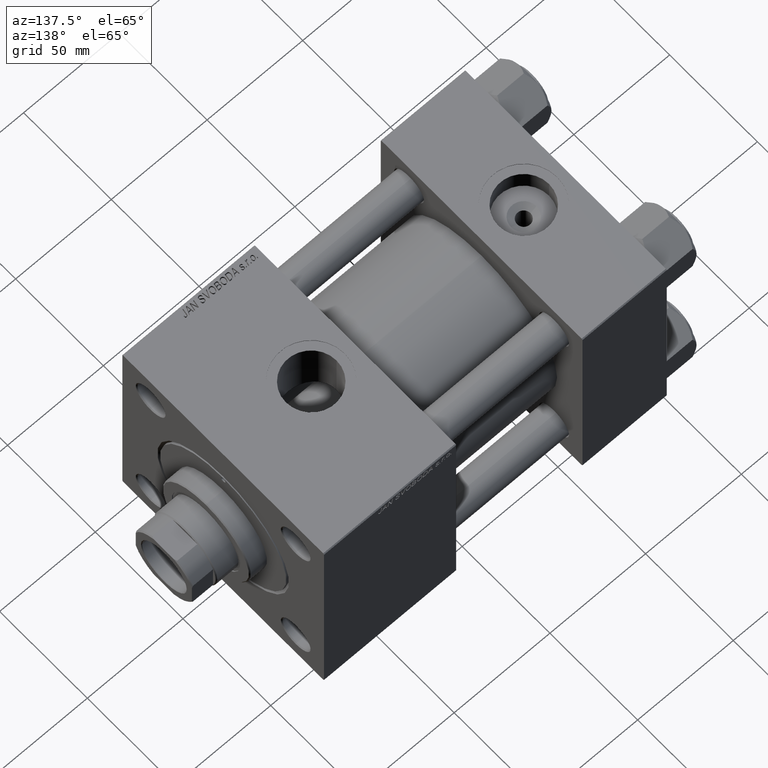
[diagram: clean part render]
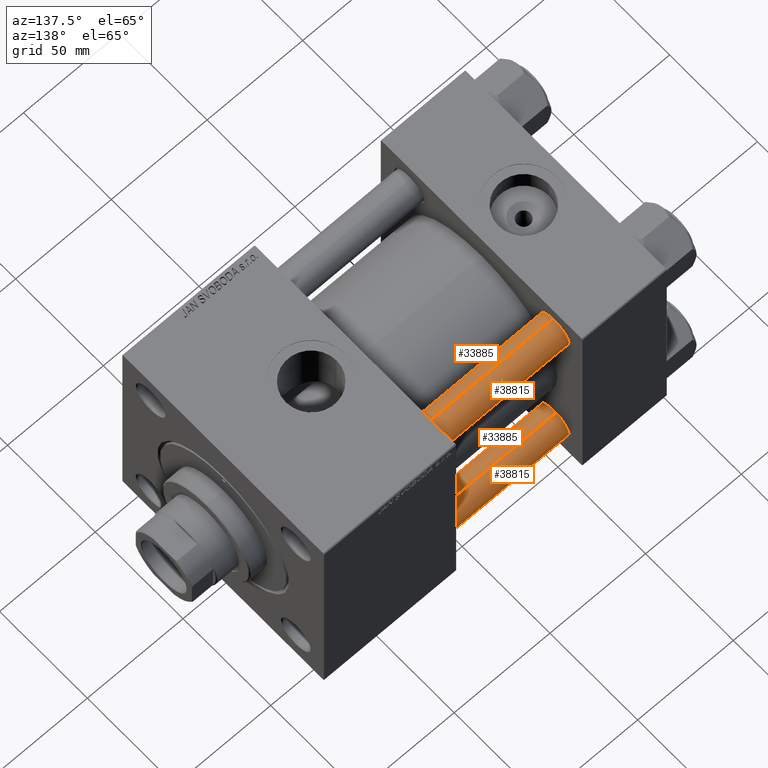
[diagram: same view with one multi-face feature highlighted, each face labeled with its STEP entity id]
A machine part, auxiliary view. The highlighted faces form ONE feature: a constant-radius fillet chain: 4 tangent blend faces with common blend radius 8 mm. The faces share edges in the B-rep.
Their STEP definitions:
[1] entity #38815 (Cylinder):
#83 = CARTESIAN_POINT ( 'NONE',  ( -8.000000000000000000, 0.000000000000000000, 142.4999999999999716 ) ) ;
#607 = DIRECTION ( 'NONE',  ( -0.000000000000000000, -0.000000000000000000, -1.000000000000000000 ) ) ;
#799 = VECTOR ( 'NONE', #31149, 1000.000000000000000 ) ;
#1654 = VERTEX_POINT ( 'NONE', #33851 ) ;
#2371 = ORIENTED_EDGE ( 'NONE', *, *, #27789, .T. ) ;
#2907 = CIRCLE ( 'NONE', #43905, 8.000000000000000000 ) ;
#3565 = CARTESIAN_POINT ( 'NONE',  ( 0.000000000000000000, 0.000000000000000000, 142.4999999999999716 ) ) ;
#3884 = CARTESIAN_POINT ( 'NONE',  ( -8.000000000000000000, 0.000000000000000000, 143.0000000000000000 ) ) ;
#5230 = FACE_OUTER_BOUND ( 'NONE', #33210, .T. ) ;
#8679 = VECTOR ( 'NONE', #28056, 1000.000000000000000 ) ;
#10657 = ORIENTED_EDGE ( 'NONE', *, *, #31506, .F. ) ;
#14594 = AXIS2_PLACEMENT_3D ( 'NONE', #44009, #607, #43529 ) ;
#16511 = ORIENTED_EDGE ( 'NONE', *, *, #17158, .T. ) ;
#17005 = CARTESIAN_POINT ( 'NONE',  ( 8.000000000000000000, 9.797174393178825657E-16, 143.0000000000000000 ) ) ;
#17158 = EDGE_CURVE ( 'NONE', #1654, #26467, #2907, .T. ) ;
#17845 = CARTESIAN_POINT ( 'NONE',  ( 0.000000000000000000, 0.000000000000000000, 0.4999999999999726885 ) ) ;
#18068 = EDGE_CURVE ( 'NONE', #42060, #1654, #27301, .T. ) ;
#19780 = DIRECTION ( 'NONE',  ( 0.000000000000000000, 0.000000000000000000, -1.000000000000000000 ) ) ;
#22027 = CIRCLE ( 'NONE', #42531, 8.000000000000000000 ) ;
#26467 = VERTEX_POINT ( 'NONE', #36353 ) ;
#27301 = LINE ( 'NONE', #17005, #8679 ) ;
#27789 = EDGE_CURVE ( 'NONE', #28188, #42060, #22027, .T. ) ;
#27878 = CYLINDRICAL_SURFACE ( 'NONE', #14594, 8.000000000000000000 ) ;
#28056 = DIRECTION ( 'NONE',  ( -0.000000000000000000, -0.000000000000000000, -1.000000000000000000 ) ) ;
#28188 = VERTEX_POINT ( 'NONE', #83 ) ;
#30138 = CARTESIAN_POINT ( 'NONE',  ( 8.000000000000000000, 9.797174393178825657E-16, 142.4999999999999716 ) ) ;
#31149 = DIRECTION ( 'NONE',  ( -0.000000000000000000, -0.000000000000000000, -1.000000000000000000 ) ) ;
#31506 = EDGE_CURVE ( 'NONE', #28188, #26467, #34740, .T. ) ;
#33210 = EDGE_LOOP ( 'NONE', ( #2371, #38118, #16511, #10657 ) ) ;
#33768 = DIRECTION ( 'NONE',  ( 1.000000000000000000, 0.000000000000000000, 0.000000000000000000 ) ) ;
#33851 = CARTESIAN_POINT ( 'NONE',  ( 8.000000000000000000, 9.797174393178825657E-16, 0.4999999999999726885 ) ) ;
#34740 = LINE ( 'NONE', #3884, #799 ) ;
#36353 = CARTESIAN_POINT ( 'NONE',  ( -8.000000000000000000, 0.000000000000000000, 0.4999999999999726885 ) ) ;
#37608 = DIRECTION ( 'NONE',  ( -0.000000000000000000, -0.000000000000000000, 1.000000000000000000 ) ) ;
#38118 = ORIENTED_EDGE ( 'NONE', *, *, #18068, .T. ) ;
#38815 = ADVANCED_FACE ( 'NONE', ( #5230 ), #27878, .T. ) ;
#42060 = VERTEX_POINT ( 'NONE', #30138 ) ;
#42531 = AXIS2_PLACEMENT_3D ( 'NONE', #3565, #19780, #50565 ) ;
#43529 = DIRECTION ( 'NONE',  ( -1.000000000000000000, 0.000000000000000000, 0.000000000000000000 ) ) ;
#43905 = AXIS2_PLACEMENT_3D ( 'NONE', #17845, #37608, #33768 ) ;
#44009 = CARTESIAN_POINT ( 'NONE',  ( 0.000000000000000000, 0.000000000000000000, 143.0000000000000000 ) ) ;
#50565 = DIRECTION ( 'NONE',  ( 1.000000000000000000, 0.000000000000000000, 0.000000000000000000 ) ) ;
[2] entity #33885 (Cylinder):
#83 = CARTESIAN_POINT ( 'NONE',  ( -8.000000000000000000, 0.000000000000000000, 142.4999999999999716 ) ) ;
#590 = CIRCLE ( 'NONE', #3050, 8.000000000000000000 ) ;
#799 = VECTOR ( 'NONE', #31149, 1000.000000000000000 ) ;
#1654 = VERTEX_POINT ( 'NONE', #33851 ) ;
#3050 = AXIS2_PLACEMENT_3D ( 'NONE', #29499, #21562, #9989 ) ;
#3884 = CARTESIAN_POINT ( 'NONE',  ( -8.000000000000000000, 0.000000000000000000, 143.0000000000000000 ) ) ;
#4504 = EDGE_CURVE ( 'NONE', #42060, #28188, #40361, .T. ) ;
#7851 = AXIS2_PLACEMENT_3D ( 'NONE', #13476, #36590, #13230 ) ;
#8679 = VECTOR ( 'NONE', #28056, 1000.000000000000000 ) ;
#9989 = DIRECTION ( 'NONE',  ( 1.000000000000000000, 0.000000000000000000, 0.000000000000000000 ) ) ;
#13177 = ORIENTED_EDGE ( 'NONE', *, *, #4504, .T. ) ;
#13230 = DIRECTION ( 'NONE',  ( -1.000000000000000000, 0.000000000000000000, 0.000000000000000000 ) ) ;
#13476 = CARTESIAN_POINT ( 'NONE',  ( 0.000000000000000000, 0.000000000000000000, 143.0000000000000000 ) ) ;
#13516 = ORIENTED_EDGE ( 'NONE', *, *, #20727, .T. ) ;
#14576 = ORIENTED_EDGE ( 'NONE', *, *, #31506, .T. ) ;
#17005 = CARTESIAN_POINT ( 'NONE',  ( 8.000000000000000000, 9.797174393178825657E-16, 143.0000000000000000 ) ) ;
#17090 = ORIENTED_EDGE ( 'NONE', *, *, #18068, .F. ) ;
#18068 = EDGE_CURVE ( 'NONE', #42060, #1654, #27301, .T. ) ;
#18888 = DIRECTION ( 'NONE',  ( 1.000000000000000000, 0.000000000000000000, 0.000000000000000000 ) ) ;
#20727 = EDGE_CURVE ( 'NONE', #26467, #1654, #590, .T. ) ;
#21562 = DIRECTION ( 'NONE',  ( -0.000000000000000000, -0.000000000000000000, 1.000000000000000000 ) ) ;
#25278 = FACE_OUTER_BOUND ( 'NONE', #34337, .T. ) ;
#26467 = VERTEX_POINT ( 'NONE', #36353 ) ;
#27301 = LINE ( 'NONE', #17005, #8679 ) ;
#28056 = DIRECTION ( 'NONE',  ( -0.000000000000000000, -0.000000000000000000, -1.000000000000000000 ) ) ;
#28188 = VERTEX_POINT ( 'NONE', #83 ) ;
#29499 = CARTESIAN_POINT ( 'NONE',  ( 0.000000000000000000, 0.000000000000000000, 0.4999999999999726885 ) ) ;
#30138 = CARTESIAN_POINT ( 'NONE',  ( 8.000000000000000000, 9.797174393178825657E-16, 142.4999999999999716 ) ) ;
#31149 = DIRECTION ( 'NONE',  ( -0.000000000000000000, -0.000000000000000000, -1.000000000000000000 ) ) ;
#31506 = EDGE_CURVE ( 'NONE', #28188, #26467, #34740, .T. ) ;
#33851 = CARTESIAN_POINT ( 'NONE',  ( 8.000000000000000000, 9.797174393178825657E-16, 0.4999999999999726885 ) ) ;
#33885 = ADVANCED_FACE ( 'NONE', ( #25278 ), #44787, .T. ) ;
#34337 = EDGE_LOOP ( 'NONE', ( #17090, #13177, #14576, #13516 ) ) ;
#34740 = LINE ( 'NONE', #3884, #799 ) ;
#36353 = CARTESIAN_POINT ( 'NONE',  ( -8.000000000000000000, 0.000000000000000000, 0.4999999999999726885 ) ) ;
#36590 = DIRECTION ( 'NONE',  ( -0.000000000000000000, -0.000000000000000000, -1.000000000000000000 ) ) ;
#38383 = CARTESIAN_POINT ( 'NONE',  ( 0.000000000000000000, 0.000000000000000000, 142.4999999999999716 ) ) ;
#40361 = CIRCLE ( 'NONE', #42803, 8.000000000000000000 ) ;
#42060 = VERTEX_POINT ( 'NONE', #30138 ) ;
#42803 = AXIS2_PLACEMENT_3D ( 'NONE', #38383, #46336, #18888 ) ;
#44787 = CYLINDRICAL_SURFACE ( 'NONE', #7851, 8.000000000000000000 ) ;
#46336 = DIRECTION ( 'NONE',  ( 0.000000000000000000, 0.000000000000000000, -1.000000000000000000 ) ) ;
[3] entity #38815 (Cylinder):
#83 = CARTESIAN_POINT ( 'NONE',  ( -8.000000000000000000, 0.000000000000000000, 142.4999999999999716 ) ) ;
#607 = DIRECTION ( 'NONE',  ( -0.000000000000000000, -0.000000000000000000, -1.000000000000000000 ) ) ;
#799 = VECTOR ( 'NONE', #31149, 1000.000000000000000 ) ;
#1654 = VERTEX_POINT ( 'NONE', #33851 ) ;
#2371 = ORIENTED_EDGE ( 'NONE', *, *, #27789, .T. ) ;
#2907 = CIRCLE ( 'NONE', #43905, 8.000000000000000000 ) ;
#3565 = CARTESIAN_POINT ( 'NONE',  ( 0.000000000000000000, 0.000000000000000000, 142.4999999999999716 ) ) ;
#3884 = CARTESIAN_POINT ( 'NONE',  ( -8.000000000000000000, 0.000000000000000000, 143.0000000000000000 ) ) ;
#5230 = FACE_OUTER_BOUND ( 'NONE', #33210, .T. ) ;
#8679 = VECTOR ( 'NONE', #28056, 1000.000000000000000 ) ;
#10657 = ORIENTED_EDGE ( 'NONE', *, *, #31506, .F. ) ;
#14594 = AXIS2_PLACEMENT_3D ( 'NONE', #44009, #607, #43529 ) ;
#16511 = ORIENTED_EDGE ( 'NONE', *, *, #17158, .T. ) ;
#17005 = CARTESIAN_POINT ( 'NONE',  ( 8.000000000000000000, 9.797174393178825657E-16, 143.0000000000000000 ) ) ;
#17158 = EDGE_CURVE ( 'NONE', #1654, #26467, #2907, .T. ) ;
#17845 = CARTESIAN_POINT ( 'NONE',  ( 0.000000000000000000, 0.000000000000000000, 0.4999999999999726885 ) ) ;
#18068 = EDGE_CURVE ( 'NONE', #42060, #1654, #27301, .T. ) ;
#19780 = DIRECTION ( 'NONE',  ( 0.000000000000000000, 0.000000000000000000, -1.000000000000000000 ) ) ;
#22027 = CIRCLE ( 'NONE', #42531, 8.000000000000000000 ) ;
#26467 = VERTEX_POINT ( 'NONE', #36353 ) ;
#27301 = LINE ( 'NONE', #17005, #8679 ) ;
#27789 = EDGE_CURVE ( 'NONE', #28188, #42060, #22027, .T. ) ;
#27878 = CYLINDRICAL_SURFACE ( 'NONE', #14594, 8.000000000000000000 ) ;
#28056 = DIRECTION ( 'NONE',  ( -0.000000000000000000, -0.000000000000000000, -1.000000000000000000 ) ) ;
#28188 = VERTEX_POINT ( 'NONE', #83 ) ;
#30138 = CARTESIAN_POINT ( 'NONE',  ( 8.000000000000000000, 9.797174393178825657E-16, 142.4999999999999716 ) ) ;
#31149 = DIRECTION ( 'NONE',  ( -0.000000000000000000, -0.000000000000000000, -1.000000000000000000 ) ) ;
#31506 = EDGE_CURVE ( 'NONE', #28188, #26467, #34740, .T. ) ;
#33210 = EDGE_LOOP ( 'NONE', ( #2371, #38118, #16511, #10657 ) ) ;
#33768 = DIRECTION ( 'NONE',  ( 1.000000000000000000, 0.000000000000000000, 0.000000000000000000 ) ) ;
#33851 = CARTESIAN_POINT ( 'NONE',  ( 8.000000000000000000, 9.797174393178825657E-16, 0.4999999999999726885 ) ) ;
#34740 = LINE ( 'NONE', #3884, #799 ) ;
#36353 = CARTESIAN_POINT ( 'NONE',  ( -8.000000000000000000, 0.000000000000000000, 0.4999999999999726885 ) ) ;
#37608 = DIRECTION ( 'NONE',  ( -0.000000000000000000, -0.000000000000000000, 1.000000000000000000 ) ) ;
#38118 = ORIENTED_EDGE ( 'NONE', *, *, #18068, .T. ) ;
#38815 = ADVANCED_FACE ( 'NONE', ( #5230 ), #27878, .T. ) ;
#42060 = VERTEX_POINT ( 'NONE', #30138 ) ;
#42531 = AXIS2_PLACEMENT_3D ( 'NONE', #3565, #19780, #50565 ) ;
#43529 = DIRECTION ( 'NONE',  ( -1.000000000000000000, 0.000000000000000000, 0.000000000000000000 ) ) ;
#43905 = AXIS2_PLACEMENT_3D ( 'NONE', #17845, #37608, #33768 ) ;
#44009 = CARTESIAN_POINT ( 'NONE',  ( 0.000000000000000000, 0.000000000000000000, 143.0000000000000000 ) ) ;
#50565 = DIRECTION ( 'NONE',  ( 1.000000000000000000, 0.000000000000000000, 0.000000000000000000 ) ) ;
[4] entity #33885 (Cylinder):
#83 = CARTESIAN_POINT ( 'NONE',  ( -8.000000000000000000, 0.000000000000000000, 142.4999999999999716 ) ) ;
#590 = CIRCLE ( 'NONE', #3050, 8.000000000000000000 ) ;
#799 = VECTOR ( 'NONE', #31149, 1000.000000000000000 ) ;
#1654 = VERTEX_POINT ( 'NONE', #33851 ) ;
#3050 = AXIS2_PLACEMENT_3D ( 'NONE', #29499, #21562, #9989 ) ;
#3884 = CARTESIAN_POINT ( 'NONE',  ( -8.000000000000000000, 0.000000000000000000, 143.0000000000000000 ) ) ;
#4504 = EDGE_CURVE ( 'NONE', #42060, #28188, #40361, .T. ) ;
#7851 = AXIS2_PLACEMENT_3D ( 'NONE', #13476, #36590, #13230 ) ;
#8679 = VECTOR ( 'NONE', #28056, 1000.000000000000000 ) ;
#9989 = DIRECTION ( 'NONE',  ( 1.000000000000000000, 0.000000000000000000, 0.000000000000000000 ) ) ;
#13177 = ORIENTED_EDGE ( 'NONE', *, *, #4504, .T. ) ;
#13230 = DIRECTION ( 'NONE',  ( -1.000000000000000000, 0.000000000000000000, 0.000000000000000000 ) ) ;
#13476 = CARTESIAN_POINT ( 'NONE',  ( 0.000000000000000000, 0.000000000000000000, 143.0000000000000000 ) ) ;
#13516 = ORIENTED_EDGE ( 'NONE', *, *, #20727, .T. ) ;
#14576 = ORIENTED_EDGE ( 'NONE', *, *, #31506, .T. ) ;
#17005 = CARTESIAN_POINT ( 'NONE',  ( 8.000000000000000000, 9.797174393178825657E-16, 143.0000000000000000 ) ) ;
#17090 = ORIENTED_EDGE ( 'NONE', *, *, #18068, .F. ) ;
#18068 = EDGE_CURVE ( 'NONE', #42060, #1654, #27301, .T. ) ;
#18888 = DIRECTION ( 'NONE',  ( 1.000000000000000000, 0.000000000000000000, 0.000000000000000000 ) ) ;
#20727 = EDGE_CURVE ( 'NONE', #26467, #1654, #590, .T. ) ;
#21562 = DIRECTION ( 'NONE',  ( -0.000000000000000000, -0.000000000000000000, 1.000000000000000000 ) ) ;
#25278 = FACE_OUTER_BOUND ( 'NONE', #34337, .T. ) ;
#26467 = VERTEX_POINT ( 'NONE', #36353 ) ;
#27301 = LINE ( 'NONE', #17005, #8679 ) ;
#28056 = DIRECTION ( 'NONE',  ( -0.000000000000000000, -0.000000000000000000, -1.000000000000000000 ) ) ;
#28188 = VERTEX_POINT ( 'NONE', #83 ) ;
#29499 = CARTESIAN_POINT ( 'NONE',  ( 0.000000000000000000, 0.000000000000000000, 0.4999999999999726885 ) ) ;
#30138 = CARTESIAN_POINT ( 'NONE',  ( 8.000000000000000000, 9.797174393178825657E-16, 142.4999999999999716 ) ) ;
#31149 = DIRECTION ( 'NONE',  ( -0.000000000000000000, -0.000000000000000000, -1.000000000000000000 ) ) ;
#31506 = EDGE_CURVE ( 'NONE', #28188, #26467, #34740, .T. ) ;
#33851 = CARTESIAN_POINT ( 'NONE',  ( 8.000000000000000000, 9.797174393178825657E-16, 0.4999999999999726885 ) ) ;
#33885 = ADVANCED_FACE ( 'NONE', ( #25278 ), #44787, .T. ) ;
#34337 = EDGE_LOOP ( 'NONE', ( #17090, #13177, #14576, #13516 ) ) ;
#34740 = LINE ( 'NONE', #3884, #799 ) ;
#36353 = CARTESIAN_POINT ( 'NONE',  ( -8.000000000000000000, 0.000000000000000000, 0.4999999999999726885 ) ) ;
#36590 = DIRECTION ( 'NONE',  ( -0.000000000000000000, -0.000000000000000000, -1.000000000000000000 ) ) ;
#38383 = CARTESIAN_POINT ( 'NONE',  ( 0.000000000000000000, 0.000000000000000000, 142.4999999999999716 ) ) ;
#40361 = CIRCLE ( 'NONE', #42803, 8.000000000000000000 ) ;
#42060 = VERTEX_POINT ( 'NONE', #30138 ) ;
#42803 = AXIS2_PLACEMENT_3D ( 'NONE', #38383, #46336, #18888 ) ;
#44787 = CYLINDRICAL_SURFACE ( 'NONE', #7851, 8.000000000000000000 ) ;
#46336 = DIRECTION ( 'NONE',  ( 0.000000000000000000, 0.000000000000000000, -1.000000000000000000 ) ) ;